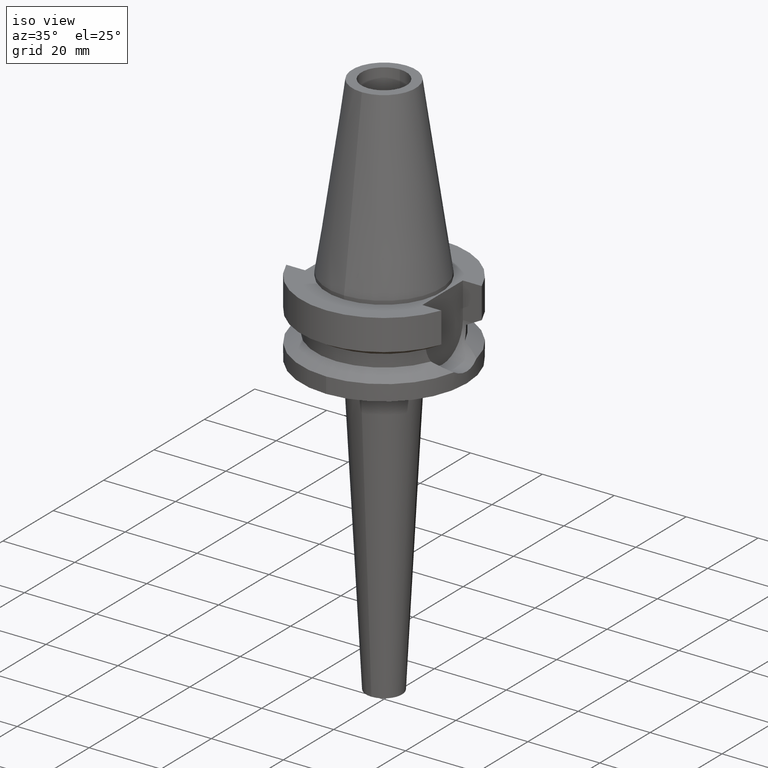
[diagram: clean part render]
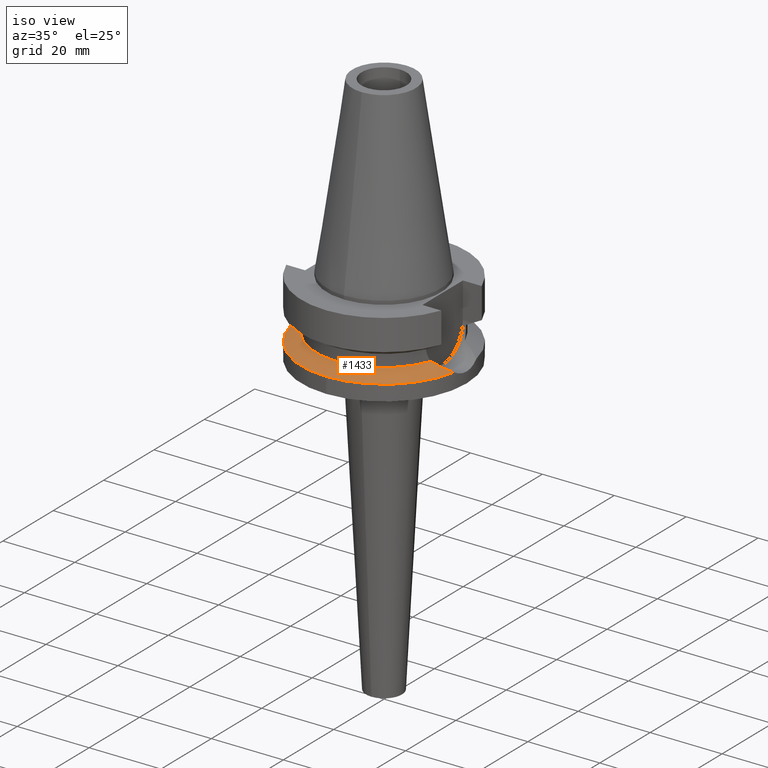
[diagram: same view with one face highlighted and labeled with its STEP entity id]
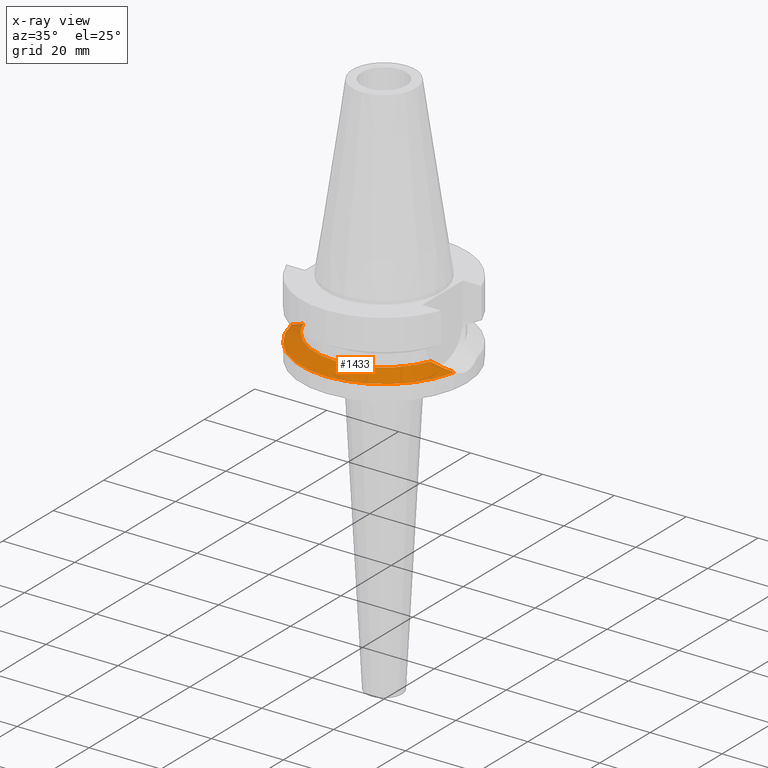
[diagram: x-ray of the same camera — body ghosted, the highlighted face saturated]
A machine part, iso view. The second image highlights one B-rep face of the part: STEP entity #1433.
The next image is the same camera in x-ray: the body ghosted, the highlighted face saturated — about 1% of this face is hidden behind the body in this view.
In plain terms, the highlighted conical surface has half-angle 60 deg.
Its self-contained STEP definition (entity closure, byte-faithful):
#430=CARTESIAN_POINT('',(-2.255786346208E1,-4.488072640470E0,
-1.763279163029E1));
#431=CARTESIAN_POINT('',(-2.209865842715E1,-4.819633542796E0,
-1.741011980440E1));
#432=CARTESIAN_POINT('',(-2.112042381301E1,-5.416862613083E0,
-1.693661522924E1));
#433=CARTESIAN_POINT('',(-1.958642899302E1,-6.133917589245E0,
-1.619751952258E1));
#434=CARTESIAN_POINT('',(-1.838842661906E1,-6.563898334625E0,
-1.562396103069E1));
#435=CARTESIAN_POINT('',(-1.775736593456E1,-6.758398853744E0,
-1.532339055353E1));
#440=CARTESIAN_POINT('',(0.E0,1.022848384030E-14,-1.532339055353E1));
#441=DIRECTION('',(0.E0,0.E0,1.E0));
#442=DIRECTION('',(-9.345982070819E-1,-3.557052028286E-1,0.E0));
#443=AXIS2_PLACEMENT_3D('',#440,#441,#442);
#448=CARTESIAN_POINT('',(0.E0,1.022848384030E-14,-1.532339055353E1));
#449=DIRECTION('',(0.E0,0.E0,1.E0));
#450=DIRECTION('',(0.E0,-1.E0,0.E0));
#451=AXIS2_PLACEMENT_3D('',#448,#449,#450);
#456=CARTESIAN_POINT('',(1.775736593456E1,-6.758398853744E0,-1.532339055353E1));
#457=CARTESIAN_POINT('',(1.840360769520E1,-6.559219343741E0,-1.563119168760E1));
#458=CARTESIAN_POINT('',(1.962126651941E1,-6.120537216752E0,-1.621423420870E1));
#459=CARTESIAN_POINT('',(2.116333771721E1,-5.393599340677E0,-1.695735369637E1));
#460=CARTESIAN_POINT('',(2.211578077610E1,-4.807270652504E0,-1.741842255462E1));
#461=CARTESIAN_POINT('',(2.255786346208E1,-4.488072640470E0,-1.763279163029E1));
#466=CARTESIAN_POINT('',(0.E0,1.022848384030E-14,-1.763279163029E1));
#467=DIRECTION('',(0.E0,0.E0,-1.E0));
#468=DIRECTION('',(9.807766722644E-1,-1.951335930639E-1,0.E0));
#469=AXIS2_PLACEMENT_3D('',#466,#467,#468);
#474=CARTESIAN_POINT('',(0.E0,1.022848384030E-14,-1.763279163029E1));
#475=DIRECTION('',(0.E0,0.E0,-1.E0));
#476=DIRECTION('',(0.E0,-1.E0,0.E0));
#477=AXIS2_PLACEMENT_3D('',#474,#475,#476);
#516=CARTESIAN_POINT('',(2.255786346208E1,-4.488072640470E0,-1.763279163029E1));
#1037=VERTEX_POINT('',#516);
#1040=CARTESIAN_POINT('',(0.E0,-2.3E1,-1.763279163029E1));
#1041=VERTEX_POINT('',#1040);
#1042=VERTEX_POINT('',#456);
#1055=VERTEX_POINT('',#430);
#1056=VERTEX_POINT('',#435);
#1057=CARTESIAN_POINT('',(0.E0,-1.9E1,-1.532339055353E1));
#1058=VERTEX_POINT('',#1057);
#1415=CARTESIAN_POINT('',(0.E0,1.022848384030E-14,-1.647809109191E1));
#1416=DIRECTION('',(0.E0,0.E0,-1.E0));
#1417=DIRECTION('',(0.E0,-1.E0,0.E0));
#1418=AXIS2_PLACEMENT_3D('',#1415,#1416,#1417);
#1419=CONICAL_SURFACE('',#1418,2.1E1,6.E1);
#1420=ORIENTED_EDGE('',*,*,#1396,.T.);
#1422=ORIENTED_EDGE('',*,*,#1421,.T.);
#1424=ORIENTED_EDGE('',*,*,#1423,.T.);
#1426=ORIENTED_EDGE('',*,*,#1425,.T.);
#1428=ORIENTED_EDGE('',*,*,#1427,.T.);
#1430=ORIENTED_EDGE('',*,*,#1429,.T.);
#1431=EDGE_LOOP('',(#1420,#1422,#1424,#1426,#1428,#1430));
#1432=FACE_OUTER_BOUND('',#1431,.F.);
#436=B_SPLINE_CURVE_WITH_KNOTS('',3,(#430,#431,#432,#433,#434,#435),
.UNSPECIFIED.,.F.,.F.,(4,1,1,4),(0.E0,3.333333333333E-1,6.666666666667E-1,1.E0),
.UNSPECIFIED.);
#444=CIRCLE('',#443,1.9E1);
#452=CIRCLE('',#451,1.9E1);
#462=B_SPLINE_CURVE_WITH_KNOTS('',3,(#456,#457,#458,#459,#460,#461),
.UNSPECIFIED.,.F.,.F.,(4,1,1,4),(0.E0,3.333333333333E-1,6.666666666667E-1,1.E0),
.UNSPECIFIED.);
#470=CIRCLE('',#469,2.3E1);
#478=CIRCLE('',#477,2.3E1);
#1396=EDGE_CURVE('',#1055,#1056,#436,.T.);
#1421=EDGE_CURVE('',#1056,#1058,#444,.T.);
#1423=EDGE_CURVE('',#1058,#1042,#452,.T.);
#1425=EDGE_CURVE('',#1042,#1037,#462,.T.);
#1427=EDGE_CURVE('',#1037,#1041,#470,.T.);
#1429=EDGE_CURVE('',#1041,#1055,#478,.T.);
#1433=ADVANCED_FACE('',(#1432),#1419,.T.);